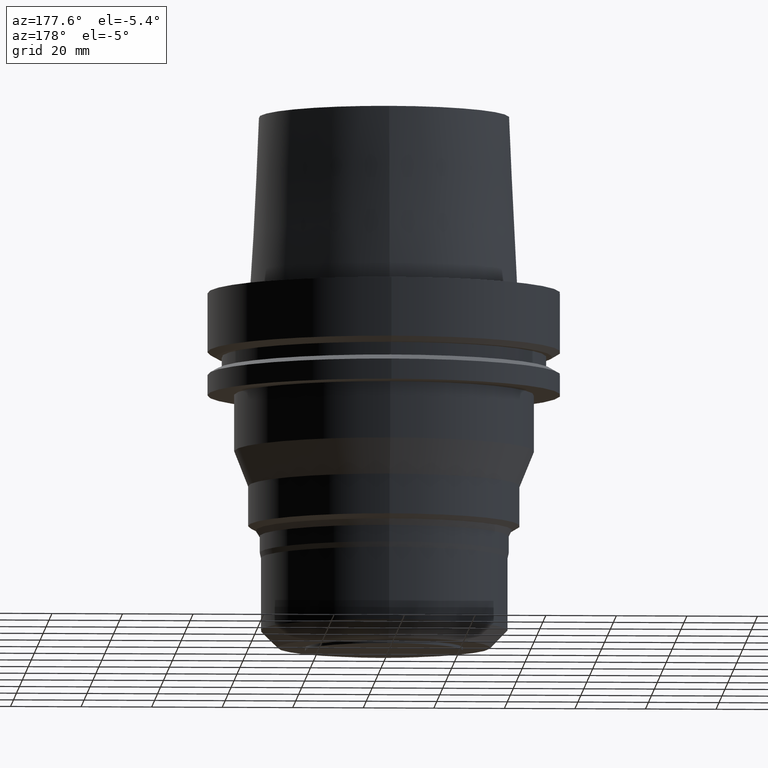
[diagram: clean part render]
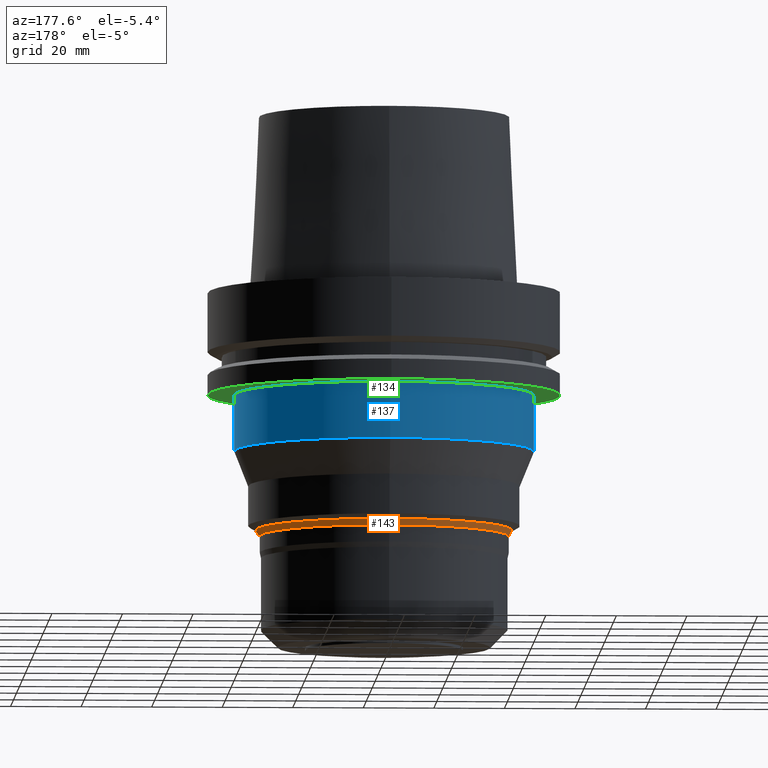
[diagram: same view with three faces highlighted in distinct colors, each labeled with its STEP entity id]
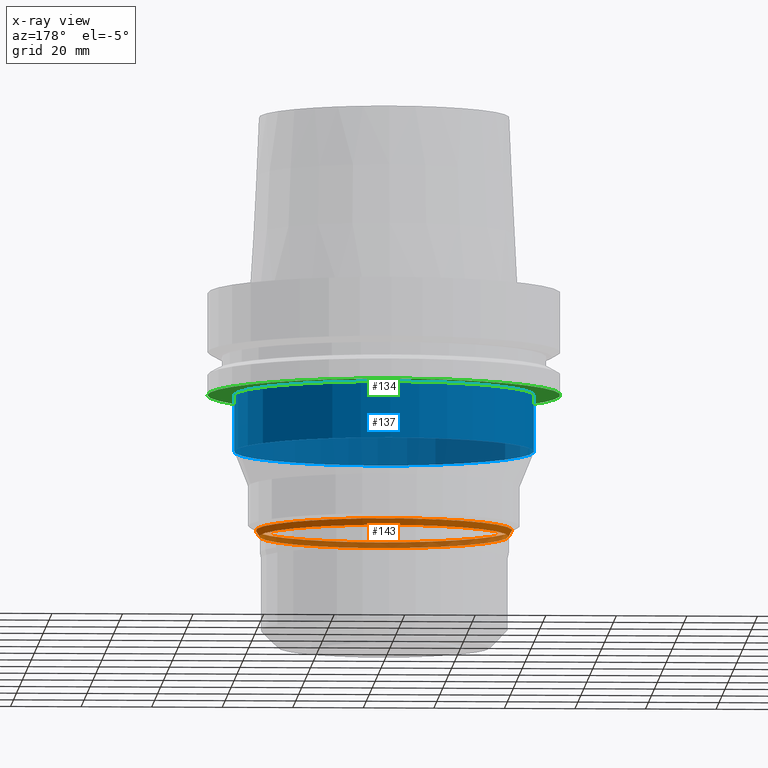
[diagram: x-ray of the same camera — body ghosted, the three highlighted faces saturated]
A machine part, auxiliary view with three faces highlighted in distinct colors.
The next image is the same camera in x-ray (body ghosted, the three faces saturated) — at least one of them is partly hidden behind the body in this view.
Their STEP definitions:

[orange] entity #143 — the highlighted conical surface has half-angle 30 deg.
#70=EDGE_CURVE('Unnamed[1]',#202,#202,#203,.T.);
#143=ADVANCED_FACE('Unnamed[1]',(#317,#318),#319,.T.);
#182=EDGE_CURVE('Unnamed[1]',#378,#378,#379,.T.);
#202=VERTEX_POINT('',#391);
#203=CIRCLE('',#392,35.3500001444791);
#317=FACE_BOUND('',#535,.T.);
#318=FACE_BOUND('',#536,.T.);
#319=CONICAL_SURFACE('',#537,35.850000144479,0.523598775598254);
#378=VERTEX_POINT('',#610);
#379=CIRCLE('',#611,36.3500001444789);
#391=CARTESIAN_POINT('',(4.23619741221846E-015,35.3500001444791,-69.1823538863266));
#392=AXIS2_PLACEMENT_3D('',#617,#618,#619);
#535=EDGE_LOOP('',(#746));
#536=EDGE_LOOP('',(#747));
#537=AXIS2_PLACEMENT_3D('',#748,#749,#750);
#610=CARTESIAN_POINT('',(4.13013988834598E-015,36.3500001444789,-67.4503030787579));
#611=AXIS2_PLACEMENT_3D('',#814,#815,#816);
#617=CARTESIAN_POINT('',(4.23619741221847E-015,2.57629779730822E-014,-69.1823538863266));
#618=DIRECTION('',(6.12323399573676E-017,8.53138753389863E-016,-1.0));
#619=DIRECTION('',(-5.7066834909142E-032,1.0,8.53138753389863E-016));
#746=ORIENTED_EDGE('',*,*,#70,.F.);
#747=ORIENTED_EDGE('',*,*,#182,.T.);
#748=CARTESIAN_POINT('',(4.18316865028223E-015,2.50241381396936E-014,-68.3163284825422));
#749=DIRECTION('',(-6.12323399573677E-017,-8.53138753389863E-016,1.0));
#750=DIRECTION('',(-5.7066834909142E-032,1.0,8.53138753389863E-016));
#814=CARTESIAN_POINT('',(4.13013988834599E-015,2.42852983063051E-014,-67.4503030787579));
#815=DIRECTION('',(6.12323399573677E-017,8.53138753389863E-016,-1.0));
#816=DIRECTION('',(-5.7066834909142E-032,1.0,8.53138753389863E-016));

[blue] entity #137 — the highlighted cylindrical surface (bore or boss wall) has radius 42.5 mm, axis along (0, 0, -1).
#75=EDGE_CURVE('Unnamed[1]',#210,#210,#211,.T.);
#111=EDGE_CURVE('Unnamed[1]',#266,#266,#267,.T.);
#137=ADVANCED_FACE('Unnamed[1]',(#307,#308),#309,.T.);
#210=VERTEX_POINT('',#401);
#211=CIRCLE('',#402,42.4999999999989);
#266=VERTEX_POINT('',#472);
#267=CIRCLE('',#473,42.4999999999997);
#307=FACE_BOUND('',#523,.T.);
#308=FACE_BOUND('',#524,.T.);
#309=CYLINDRICAL_SURFACE('',#525,42.4999999999993);
#401=CARTESIAN_POINT('',(1.77573785876361E-015,42.4999999999989,-28.9999999999991));
#402=AXIS2_PLACEMENT_3D('',#626,#627,#628);
#472=CARTESIAN_POINT('',(2.75545529808163E-015,42.4999999999997,-45.0000000000014));
#473=AXIS2_PLACEMENT_3D('',#688,#689,#690);
#523=EDGE_LOOP('',(#734));
#524=EDGE_LOOP('',(#735));
#525=AXIS2_PLACEMENT_3D('',#736,#737,#738);
#626=CARTESIAN_POINT('',(1.77573785876361E-015,-8.51814532976959E-015,-28.9999999999991));
#627=DIRECTION('',(6.12323399573677E-017,8.53138753389863E-016,-1.0));
#628=DIRECTION('',(-5.7066834909142E-032,1.0,8.53138753389863E-016));
#688=CARTESIAN_POINT('',(2.75545529808163E-015,5.13207472447017E-015,-45.0000000000014));
#689=DIRECTION('',(6.12323399573677E-017,8.53138753389863E-016,-1.0));
#690=DIRECTION('',(-5.7066834909142E-032,1.0,8.53138753389863E-016));
#734=ORIENTED_EDGE('',*,*,#111,.F.);
#735=ORIENTED_EDGE('',*,*,#75,.T.);
#736=CARTESIAN_POINT('',(2.26559657842262E-015,-1.69303530264971E-015,-37.0000000000003));
#737=DIRECTION('',(6.12323399573677E-017,8.53138753389863E-016,-1.0));
#738=DIRECTION('',(-5.7066834909142E-032,1.0,8.53138753389863E-016));

[green] entity #134 — the highlighted planar face has unit normal (0, 0, -1).
#75=EDGE_CURVE('Unnamed[1]',#210,#210,#211,.T.);
#134=ADVANCED_FACE('Unnamed[1]',(#302,#303),#304,.T.);
#176=EDGE_CURVE('Unnamed[1]',#369,#369,#370,.T.);
#210=VERTEX_POINT('',#401);
#211=CIRCLE('',#402,42.4999999999989);
#302=FACE_BOUND('',#517,.T.);
#303=FACE_OUTER_BOUND('',#518,.T.);
#304=PLANE('',#519);
#369=VERTEX_POINT('',#598);
#370=CIRCLE('',#599,50.0);
#401=CARTESIAN_POINT('',(1.77573785876361E-015,42.4999999999989,-28.9999999999991));
#402=AXIS2_PLACEMENT_3D('',#626,#627,#628);
#517=EDGE_LOOP('',(#728));
#518=EDGE_LOOP('',(#729));
#519=AXIS2_PLACEMENT_3D('',#730,#731,#732);
#598=CARTESIAN_POINT('',(1.77573785876361E-015,50.0,-28.9999999999991));
#599=AXIS2_PLACEMENT_3D('',#805,#806,#807);
#626=CARTESIAN_POINT('',(1.77573785876361E-015,-8.51814532976959E-015,-28.9999999999991));
#627=DIRECTION('',(6.12323399573677E-017,8.53138753389863E-016,-1.0));
#628=DIRECTION('',(-5.7066834909142E-032,1.0,8.53138753389863E-016));
#728=ORIENTED_EDGE('',*,*,#75,.F.);
#729=ORIENTED_EDGE('',*,*,#176,.T.);
#730=CARTESIAN_POINT('',(1.77573785876361E-015,46.2499999999994,-28.9999999999991));
#731=DIRECTION('',(6.12323399573677E-017,1.22464679914735E-016,-1.0));
#732=DIRECTION('',(-1.23259516440783E-032,1.0,1.22464679914735E-016));
#805=CARTESIAN_POINT('',(1.77573785876361E-015,-8.51814532976957E-015,-28.9999999999991));
#806=DIRECTION('',(6.12323399573677E-017,8.53138753389863E-016,-1.0));
#807=DIRECTION('',(-5.7066834909142E-032,1.0,8.53138753389863E-016));